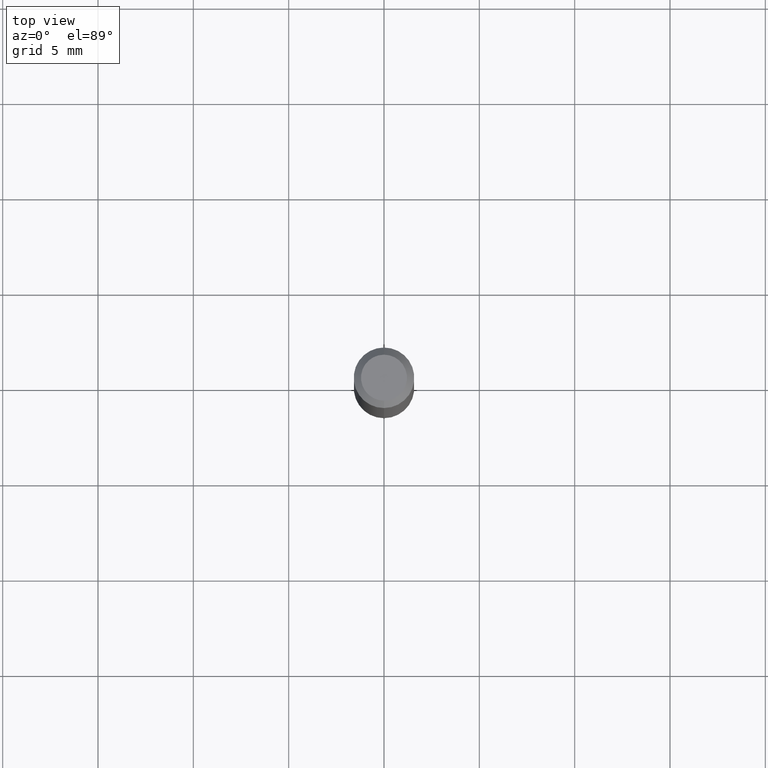
[diagram: clean part render]
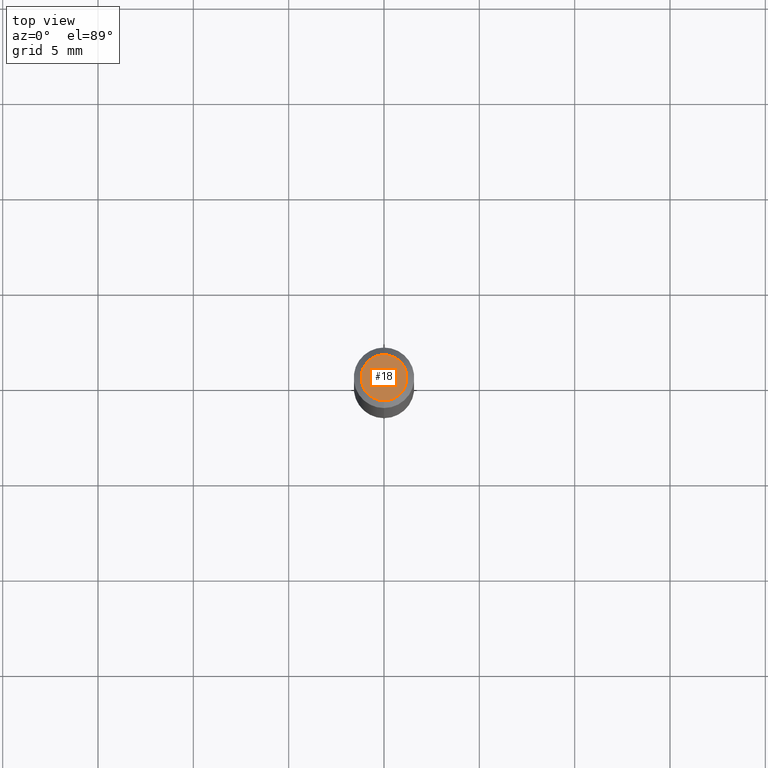
[diagram: same view with one face highlighted and labeled with its STEP entity id]
A machine part, top view. The second image highlights one B-rep face of the part: STEP entity #18.
In plain terms, the highlighted planar face has unit normal (0, -0, -1).
Its self-contained STEP definition (entity closure, byte-faithful):
#18 = ADVANCED_FACE ( 'NONE', ( #512 ), #82, .F. ) ;
#64 = CARTESIAN_POINT ( 'NONE',  ( 8.758191564929115309E-45, -1.250185265265728213E-30, -3.581034872216010807E-16 ) ) ;
#82 = PLANE ( 'NONE',  #223 ) ;
#108 = EDGE_CURVE ( 'NONE', #252, #249, #256, .T. ) ;
#112 = CARTESIAN_POINT ( 'NONE',  ( 3.840629472727450339E-16, 0.04750000000000004219, -5.239320876657356674E-16 ) ) ;
#127 = DIRECTION ( 'NONE',  ( 2.445715240831872622E-29, -3.491128430402830124E-15, -1.000000000000000000 ) ) ;
#157 = EDGE_CURVE ( 'NONE', #249, #252, #291, .T. ) ;
#166 = DIRECTION ( 'NONE',  ( 6.982962677686265922E-15, 1.000000000000000000, -3.491128430402830124E-15 ) ) ;
#184 = CARTESIAN_POINT ( 'NONE',  ( -3.773273898774342241E-16, -0.04750000000000004219, -1.922748867774664941E-16 ) ) ;
#223 = AXIS2_PLACEMENT_3D ( 'NONE', #390, #127, #166 ) ;
#235 = AXIS2_PLACEMENT_3D ( 'NONE', #64, #337, #489 ) ;
#249 = VERTEX_POINT ( 'NONE', #184 ) ;
#252 = VERTEX_POINT ( 'NONE', #112 ) ;
#256 = CIRCLE ( 'NONE', #499, 0.04750000000000004219 ) ;
#277 = ORIENTED_EDGE ( 'NONE', *, *, #157, .T. ) ;
#287 = DIRECTION ( 'NONE',  ( -2.445715240831873182E-29, 3.491128430402830124E-15, 1.000000000000000000 ) ) ;
#291 = CIRCLE ( 'NONE', #235, 0.04750000000000004219 ) ;
#330 = CARTESIAN_POINT ( 'NONE',  ( 8.758191564929115309E-45, -1.250185265265728213E-30, -3.581034872216010807E-16 ) ) ;
#337 = DIRECTION ( 'NONE',  ( -2.445715240831873182E-29, 3.491128430402830124E-15, 1.000000000000000000 ) ) ;
#356 = EDGE_LOOP ( 'NONE', ( #424, #277 ) ) ;
#390 = CARTESIAN_POINT ( 'NONE',  ( 3.316907271900979054E-16, 0.04750000000000004219, -3.448803440549351024E-16 ) ) ;
#424 = ORIENTED_EDGE ( 'NONE', *, *, #108, .T. ) ;
#438 = DIRECTION ( 'NONE',  ( -6.982962677686265133E-15, -1.000000000000000000, 3.491128430402830124E-15 ) ) ;
#489 = DIRECTION ( 'NONE',  ( -6.982962677686265133E-15, -1.000000000000000000, 3.491128430402830124E-15 ) ) ;
#499 = AXIS2_PLACEMENT_3D ( 'NONE', #330, #287, #438 ) ;
#512 = FACE_OUTER_BOUND ( 'NONE', #356, .T. ) ;